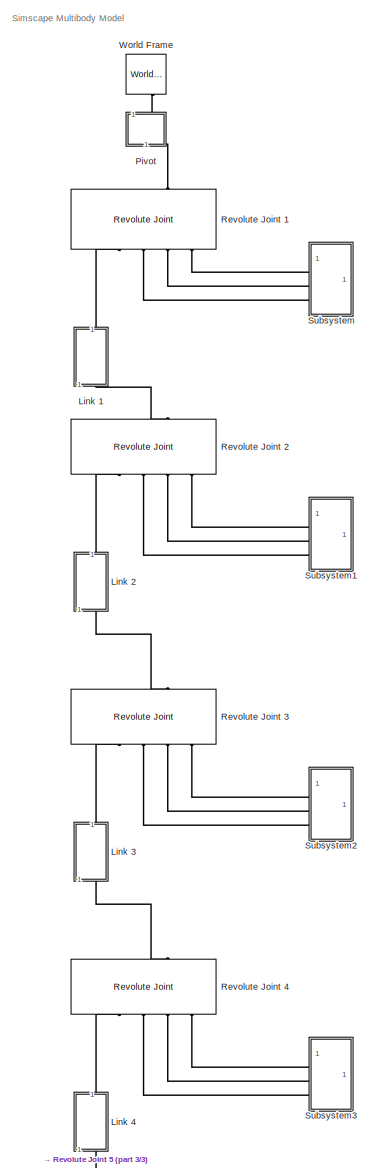
[diagram: root canvas - part 1/3, top right region]
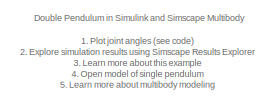
[diagram: root canvas - part 2/3, top left region]
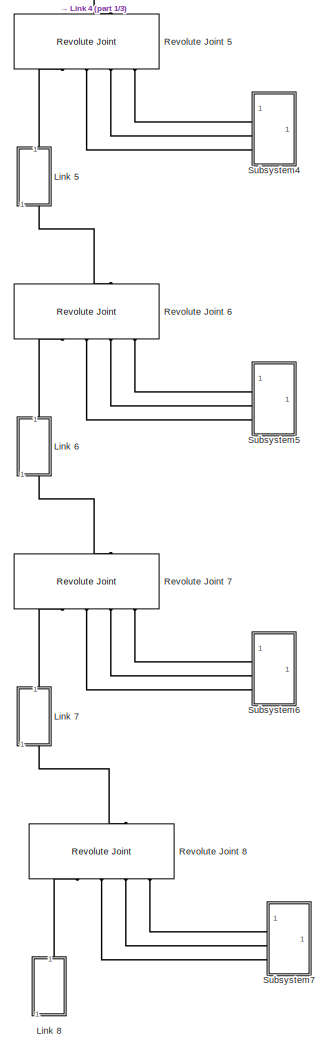
[diagram: root canvas - part 3/3, bottom right region]
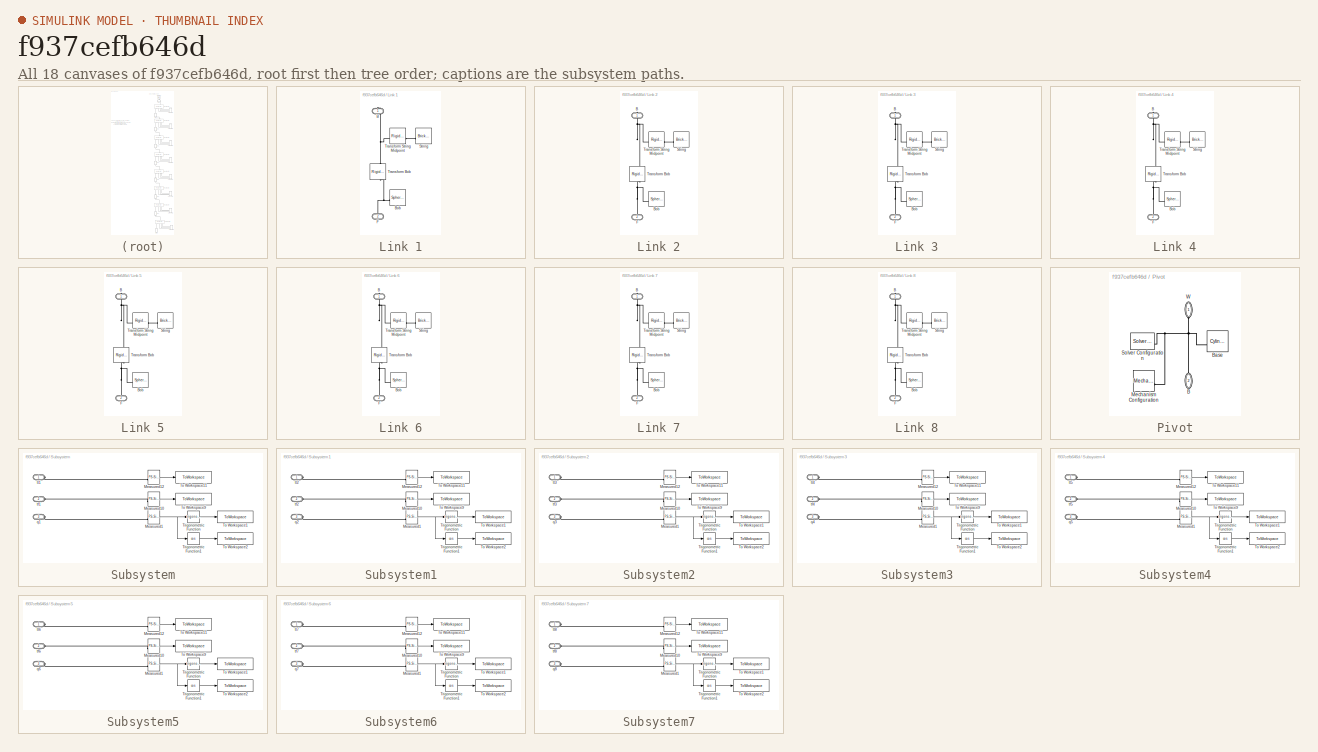
[diagram: thumbnail index - all 18 canvases of the model, root first then tree order]
MODEL slx_f937cefb646d
KIND model
CONFIG AbsTol = auto
CONFIG EnableMultiTasking = on
CONFIG FixedStep = auto
CONFIG MaxStep = 1e-2
CONFIG MinStep = auto
CONFIG RelTol = 1e-3
CONFIG SampleTimeConstraint = Unconstrained
CONFIG SolverName = ode15s
CONFIG StartTime = 0.0
CONFIG StopTime = runtime
WORKSPACE source: MATLAB code (in-file)
WORKSPACE m1 = 2
WORKSPACE m2 = 3
WORKSPACE L1 = 1.2
WORKSPACE L2 = 1.6
WORKSPACE g = 9.81
WORKSPACE theta1_0 = 22.5
WORKSPACE theta2_0 = -22.5
BLOCK [SubSystem] Link 1
  NameLocation = right
  Tag = CustomStyle
BLOCK [PMIOPort] Link 1/B
  NameLocation = right
  Side = Right
BLOCK [Reference] Link 1/Bob  REF=sm_lib/Body Elements/Spherical Solid
  SourceBlock = sm_lib/Body Elements/Spherical Solid
  SourceType = Spherical Solid
BLOCK [PMIOPort] Link 1/F
  NameLocation = right
  Port = 2
  Side = Left
BLOCK [Reference] Link 1/String  REF=sm_lib/Body Elements/Brick Solid
  SourceBlock = sm_lib/Body Elements/Brick Solid
  SourceType = Brick Solid
BLOCK [Reference] Link 1/Transform Bob   REF=sm_lib/Frames and
Transforms/Rigid
Transform
  NameLocation = right
  SourceBlock = sm_lib/Frames and\nTransforms/Rigid\nTransform
  SourceType = Rigid\nTransform
BLOCK [Reference] Link 1/Transform String Midpoint  REF=sm_lib/Frames and
Transforms/Rigid
Transform
  SourceBlock = sm_lib/Frames and\nTransforms/Rigid\nTransform
  SourceType = Rigid\nTransform
BLOCK [SubSystem] Link 2
  NameLocation = right
  Tag = CustomStyle
BLOCK [PMIOPort] Link 2/B
  NameLocation = right
  Side = Right
BLOCK [Reference] Link 2/Bob  REF=sm_lib/Body Elements/Spherical Solid
  SourceBlock = sm_lib/Body Elements/Spherical Solid
  SourceType = Spherical Solid
BLOCK [PMIOPort] Link 2/F
  NameLocation = right
  Port = 2
  Side = Left
BLOCK [Reference] Link 2/String  REF=sm_lib/Body Elements/Brick Solid
  SourceBlock = sm_lib/Body Elements/Brick Solid
  SourceType = Brick Solid
BLOCK [Reference] Link 2/Transform Bob   REF=sm_lib/Frames and
Transforms/Rigid
Transform
  NameLocation = right
  SourceBlock = sm_lib/Frames and\nTransforms/Rigid\nTransform
  SourceType = Rigid\nTransform
BLOCK [Reference] Link 2/Transform String Midpoint  REF=sm_lib/Frames and
Transforms/Rigid
Transform
  SourceBlock = sm_lib/Frames and\nTransforms/Rigid\nTransform
  SourceType = Rigid\nTransform
BLOCK [SubSystem] Link 3
  NameLocation = right
  Tag = CustomStyle
BLOCK [PMIOPort] Link 3/B
  NameLocation = right
  Side = Right
BLOCK [Reference] Link 3/Bob  REF=sm_lib/Body Elements/Spherical Solid
  SourceBlock = sm_lib/Body Elements/Spherical Solid
  SourceType = Spherical Solid
BLOCK [PMIOPort] Link 3/F
  NameLocation = right
  Port = 2
  Side = Left
BLOCK [Reference] Link 3/String  REF=sm_lib/Body Elements/Brick Solid
  SourceBlock = sm_lib/Body Elements/Brick Solid
  SourceType = Brick Solid
BLOCK [Reference] Link 3/Transform Bob   REF=sm_lib/Frames and
Transforms/Rigid
Transform
  NameLocation = right
  SourceBlock = sm_lib/Frames and\nTransforms/Rigid\nTransform
  SourceType = Rigid\nTransform
BLOCK [Reference] Link 3/Transform String Midpoint  REF=sm_lib/Frames and
Transforms/Rigid
Transform
  SourceBlock = sm_lib/Frames and\nTransforms/Rigid\nTransform
  SourceType = Rigid\nTransform
BLOCK [SubSystem] Link 4
  NameLocation = right
  Tag = CustomStyle
BLOCK [PMIOPort] Link 4/B
  NameLocation = right
  Side = Right
BLOCK [Reference] Link 4/Bob  REF=sm_lib/Body Elements/Spherical Solid
  SourceBlock = sm_lib/Body Elements/Spherical Solid
  SourceType = Spherical Solid
BLOCK [PMIOPort] Link 4/F
  NameLocation = right
  Port = 2
  Side = Left
BLOCK [Reference] Link 4/String  REF=sm_lib/Body Elements/Brick Solid
  SourceBlock = sm_lib/Body Elements/Brick Solid
  SourceType = Brick Solid
BLOCK [Reference] Link 4/Transform Bob   REF=sm_lib/Frames and
Transforms/Rigid
Transform
  NameLocation = right
  SourceBlock = sm_lib/Frames and\nTransforms/Rigid\nTransform
  SourceType = Rigid\nTransform
BLOCK [Reference] Link 4/Transform String Midpoint  REF=sm_lib/Frames and
Transforms/Rigid
Transform
  SourceBlock = sm_lib/Frames and\nTransforms/Rigid\nTransform
  SourceType = Rigid\nTransform
BLOCK [SubSystem] Link 5
  NameLocation = right
  Tag = CustomStyle
BLOCK [PMIOPort] Link 5/B
  NameLocation = right
  Side = Right
BLOCK [Reference] Link 5/Bob  REF=sm_lib/Body Elements/Spherical Solid
  SourceBlock = sm_lib/Body Elements/Spherical Solid
  SourceType = Spherical Solid
BLOCK [PMIOPort] Link 5/F
  NameLocation = right
  Port = 2
  Side = Left
BLOCK [Reference] Link 5/String  REF=sm_lib/Body Elements/Brick Solid
  SourceBlock = sm_lib/Body Elements/Brick Solid
  SourceType = Brick Solid
BLOCK [Reference] Link 5/Transform Bob   REF=sm_lib/Frames and
Transforms/Rigid
Transform
  NameLocation = right
  SourceBlock = sm_lib/Frames and\nTransforms/Rigid\nTransform
  SourceType = Rigid\nTransform
BLOCK [Reference] Link 5/Transform String Midpoint  REF=sm_lib/Frames and
Transforms/Rigid
Transform
  SourceBlock = sm_lib/Frames and\nTransforms/Rigid\nTransform
  SourceType = Rigid\nTransform
BLOCK [SubSystem] Link 6
  NameLocation = right
  Tag = CustomStyle
BLOCK [PMIOPort] Link 6/B
  NameLocation = right
  Side = Right
BLOCK [Reference] Link 6/Bob  REF=sm_lib/Body Elements/Spherical Solid
  SourceBlock = sm_lib/Body Elements/Spherical Solid
  SourceType = Spherical Solid
BLOCK [PMIOPort] Link 6/F
  NameLocation = right
  Port = 2
  Side = Left
BLOCK [Reference] Link 6/String  REF=sm_lib/Body Elements/Brick Solid
  SourceBlock = sm_lib/Body Elements/Brick Solid
  SourceType = Brick Solid
BLOCK [Reference] Link 6/Transform Bob   REF=sm_lib/Frames and
Transforms/Rigid
Transform
  NameLocation = right
  SourceBlock = sm_lib/Frames and\nTransforms/Rigid\nTransform
  SourceType = Rigid\nTransform
BLOCK [Reference] Link 6/Transform String Midpoint  REF=sm_lib/Frames and
Transforms/Rigid
Transform
  SourceBlock = sm_lib/Frames and\nTransforms/Rigid\nTransform
  SourceType = Rigid\nTransform
BLOCK [SubSystem] Link 7
  NameLocation = right
  Tag = CustomStyle
BLOCK [PMIOPort] Link 7/B
  NameLocation = right
  Side = Right
BLOCK [Reference] Link 7/Bob  REF=sm_lib/Body Elements/Spherical Solid
  SourceBlock = sm_lib/Body Elements/Spherical Solid
  SourceType = Spherical Solid
BLOCK [PMIOPort] Link 7/F
  NameLocation = right
  Port = 2
  Side = Left
BLOCK [Reference] Link 7/String  REF=sm_lib/Body Elements/Brick Solid
  SourceBlock = sm_lib/Body Elements/Brick Solid
  SourceType = Brick Solid
BLOCK [Reference] Link 7/Transform Bob   REF=sm_lib/Frames and
Transforms/Rigid
Transform
  NameLocation = right
  SourceBlock = sm_lib/Frames and\nTransforms/Rigid\nTransform
  SourceType = Rigid\nTransform
BLOCK [Reference] Link 7/Transform String Midpoint  REF=sm_lib/Frames and
Transforms/Rigid
Transform
  SourceBlock = sm_lib/Frames and\nTransforms/Rigid\nTransform
  SourceType = Rigid\nTransform
BLOCK [SubSystem] Link 8
  NameLocation = right
  Tag = CustomStyle
BLOCK [PMIOPort] Link 8/B
  NameLocation = right
  Side = Right
BLOCK [Reference] Link 8/Bob  REF=sm_lib/Body Elements/Spherical Solid
  SourceBlock = sm_lib/Body Elements/Spherical Solid
  SourceType = Spherical Solid
BLOCK [PMIOPort] Link 8/F
  NameLocation = right
  Port = 2
  Side = Left
BLOCK [Reference] Link 8/String  REF=sm_lib/Body Elements/Brick Solid
  SourceBlock = sm_lib/Body Elements/Brick Solid
  SourceType = Brick Solid
BLOCK [Reference] Link 8/Transform Bob   REF=sm_lib/Frames and
Transforms/Rigid
Transform
  NameLocation = right
  SourceBlock = sm_lib/Frames and\nTransforms/Rigid\nTransform
  SourceType = Rigid\nTransform
BLOCK [Reference] Link 8/Transform String Midpoint  REF=sm_lib/Frames and
Transforms/Rigid
Transform
  SourceBlock = sm_lib/Frames and\nTransforms/Rigid\nTransform
  SourceType = Rigid\nTransform
BLOCK [SubSystem] Pivot
  NameLocation = right
  Tag = CustomStyle
BLOCK [PMIOPort] Pivot/B
  NameLocation = right
  Port = 2
  Side = Right
BLOCK [Reference] Pivot/Base  REF=sm_lib/Body Elements/Cylindrical Solid
  SourceBlock = sm_lib/Body Elements/Cylindrical Solid
  SourceType = Cylindrical Solid
BLOCK [Reference] Pivot/Mechanism Configuration  REF=sm_lib/Utilities/Mechanism
Configuration
  SourceBlock = sm_lib/Utilities/Mechanism\nConfiguration
  SourceType = Mechanism\nConfiguration
BLOCK [Reference] Pivot/Solver Configuration  REF=nesl_utility/Solver
Configuration
  SourceBlock = nesl_utility/Solver\nConfiguration
  SourceType = Solver\nConfiguration
BLOCK [PMIOPort] Pivot/W
  NameLocation = right
  Side = Left
BLOCK [Reference] Revolute Joint 1  REF=sm_lib/Joints/Revolute Joint
  NameLocation = right
  SourceBlock = sm_lib/Joints/Revolute Joint
  SourceType = Revolute Joint
BLOCK [Reference] Revolute Joint 2  REF=sm_lib/Joints/Revolute Joint
  NameLocation = right
  SourceBlock = sm_lib/Joints/Revolute Joint
  SourceType = Revolute Joint
BLOCK [Reference] Revolute Joint 3  REF=sm_lib/Joints/Revolute Joint
  NameLocation = right
  SourceBlock = sm_lib/Joints/Revolute Joint
  SourceType = Revolute Joint
BLOCK [Reference] Revolute Joint 4  REF=sm_lib/Joints/Revolute Joint
  NameLocation = right
  SourceBlock = sm_lib/Joints/Revolute Joint
  SourceType = Revolute Joint
BLOCK [Reference] Revolute Joint 5  REF=sm_lib/Joints/Revolute Joint
  NameLocation = right
  SourceBlock = sm_lib/Joints/Revolute Joint
  SourceType = Revolute Joint
BLOCK [Reference] Revolute Joint 6  REF=sm_lib/Joints/Revolute Joint
  NameLocation = right
  SourceBlock = sm_lib/Joints/Revolute Joint
  SourceType = Revolute Joint
BLOCK [Reference] Revolute Joint 7  REF=sm_lib/Joints/Revolute Joint
  NameLocation = right
  SourceBlock = sm_lib/Joints/Revolute Joint
  SourceType = Revolute Joint
BLOCK [Reference] Revolute Joint 8  REF=sm_lib/Joints/Revolute Joint
  NameLocation = right
  SourceBlock = sm_lib/Joints/Revolute Joint
  SourceType = Revolute Joint
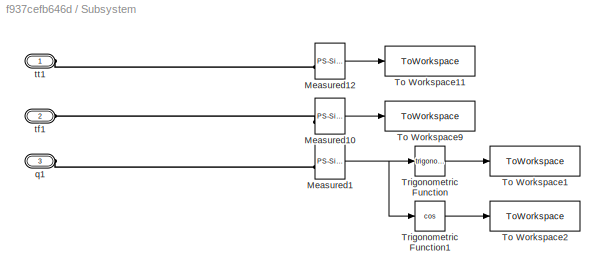
BLOCK [SubSystem] Subsystem
BLOCK [Reference] Subsystem/Measured1  REF=nesl_utility/PS-Simulink
Converter
  NameLocation = top
  SourceBlock = nesl_utility/PS-Simulink\nConverter
  SourceType = PS-Simulink\nConverter
BLOCK [Reference] Subsystem/Measured10  REF=nesl_utility/PS-Simulink
Converter
  NameLocation = top
  SourceBlock = nesl_utility/PS-Simulink\nConverter
  SourceType = PS-Simulink\nConverter
BLOCK [Reference] Subsystem/Measured12  REF=nesl_utility/PS-Simulink
Converter
  NameLocation = top
  SourceBlock = nesl_utility/PS-Simulink\nConverter
  SourceType = PS-Simulink\nConverter
BLOCK [ToWorkspace] Subsystem/To Workspace1
  FixptAsFi = on
  MaxDataPoints = inf
  SampleTime = sampletime
  VariableName = sin1
BLOCK [ToWorkspace] Subsystem/To Workspace11
  FixptAsFi = on
  MaxDataPoints = inf
  SampleTime = sampletime
  VariableName = tt1
BLOCK [ToWorkspace] Subsystem/To Workspace2
  FixptAsFi = on
  MaxDataPoints = inf
  SampleTime = sampletime
  VariableName = cos1
BLOCK [ToWorkspace] Subsystem/To Workspace9
  FixptAsFi = on
  MaxDataPoints = inf
  SampleTime = sampletime
  VariableName = tf1
BLOCK [Trigonometry] Subsystem/Trigonometric Function
BLOCK [Trigonometry] Subsystem/Trigonometric Function1
  Operator = cos
BLOCK [PMIOPort] Subsystem/q1
  Port = 3
  Side = Left
BLOCK [PMIOPort] Subsystem/tf1
  Port = 2
  Side = Left
BLOCK [PMIOPort] Subsystem/tt1
  Side = Left
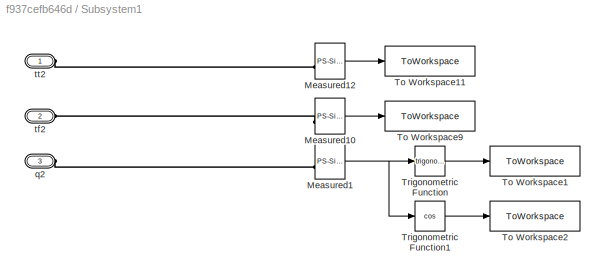
BLOCK [SubSystem] Subsystem1
BLOCK [Reference] Subsystem1/Measured1  REF=nesl_utility/PS-Simulink
Converter
  NameLocation = top
  SourceBlock = nesl_utility/PS-Simulink\nConverter
  SourceType = PS-Simulink\nConverter
BLOCK [Reference] Subsystem1/Measured10  REF=nesl_utility/PS-Simulink
Converter
  NameLocation = top
  SourceBlock = nesl_utility/PS-Simulink\nConverter
  SourceType = PS-Simulink\nConverter
BLOCK [Reference] Subsystem1/Measured12  REF=nesl_utility/PS-Simulink
Converter
  NameLocation = top
  SourceBlock = nesl_utility/PS-Simulink\nConverter
  SourceType = PS-Simulink\nConverter
BLOCK [ToWorkspace] Subsystem1/To Workspace1
  FixptAsFi = on
  MaxDataPoints = inf
  SampleTime = sampletime
  VariableName = sin2
BLOCK [ToWorkspace] Subsystem1/To Workspace11
  FixptAsFi = on
  MaxDataPoints = inf
  SampleTime = sampletime
  VariableName = tt2
BLOCK [ToWorkspace] Subsystem1/To Workspace2
  FixptAsFi = on
  MaxDataPoints = inf
  SampleTime = sampletime
  VariableName = cos2
BLOCK [ToWorkspace] Subsystem1/To Workspace9
  FixptAsFi = on
  MaxDataPoints = inf
  SampleTime = sampletime
  VariableName = tf2
BLOCK [Trigonometry] Subsystem1/Trigonometric Function
BLOCK [Trigonometry] Subsystem1/Trigonometric Function1
  Operator = cos
BLOCK [PMIOPort] Subsystem1/q2
  Port = 3
  Side = Left
BLOCK [PMIOPort] Subsystem1/tf2
  Port = 2
  Side = Left
BLOCK [PMIOPort] Subsystem1/tt2
  Side = Left
BLOCK [SubSystem] Subsystem2
BLOCK [Reference] Subsystem2/Measured1  REF=nesl_utility/PS-Simulink
Converter
  NameLocation = top
  SourceBlock = nesl_utility/PS-Simulink\nConverter
  SourceType = PS-Simulink\nConverter
BLOCK [Reference] Subsystem2/Measured10  REF=nesl_utility/PS-Simulink
Converter
  NameLocation = top
  SourceBlock = nesl_utility/PS-Simulink\nConverter
  SourceType = PS-Simulink\nConverter
BLOCK [Reference] Subsystem2/Measured12  REF=nesl_utility/PS-Simulink
Converter
  NameLocation = top
  SourceBlock = nesl_utility/PS-Simulink\nConverter
  SourceType = PS-Simulink\nConverter
BLOCK [ToWorkspace] Subsystem2/To Workspace1
  FixptAsFi = on
  MaxDataPoints = inf
  SampleTime = sampletime
  VariableName = sin3
BLOCK [ToWorkspace] Subsystem2/To Workspace11
  FixptAsFi = on
  MaxDataPoints = inf
  SampleTime = sampletime
  VariableName = tt3
BLOCK [ToWorkspace] Subsystem2/To Workspace2
  FixptAsFi = on
  MaxDataPoints = inf
  SampleTime = sampletime
  VariableName = cos3
BLOCK [ToWorkspace] Subsystem2/To Workspace9
  FixptAsFi = on
  MaxDataPoints = inf
  SampleTime = sampletime
  VariableName = tf3
BLOCK [Trigonometry] Subsystem2/Trigonometric Function
BLOCK [Trigonometry] Subsystem2/Trigonometric Function1
  Operator = cos
BLOCK [PMIOPort] Subsystem2/q3
  Port = 3
  Side = Left
BLOCK [PMIOPort] Subsystem2/tf3
  Port = 2
  Side = Left
BLOCK [PMIOPort] Subsystem2/tt3
  Side = Left
BLOCK [SubSystem] Subsystem3
BLOCK [Reference] Subsystem3/Measured1  REF=nesl_utility/PS-Simulink
Converter
  NameLocation = top
  SourceBlock = nesl_utility/PS-Simulink\nConverter
  SourceType = PS-Simulink\nConverter
BLOCK [Reference] Subsystem3/Measured10  REF=nesl_utility/PS-Simulink
Converter
  NameLocation = top
  SourceBlock = nesl_utility/PS-Simulink\nConverter
  SourceType = PS-Simulink\nConverter
BLOCK [Reference] Subsystem3/Measured12  REF=nesl_utility/PS-Simulink
Converter
  NameLocation = top
  SourceBlock = nesl_utility/PS-Simulink\nConverter
  SourceType = PS-Simulink\nConverter
BLOCK [ToWorkspace] Subsystem3/To Workspace1
  FixptAsFi = on
  MaxDataPoints = inf
  SampleTime = sampletime
  VariableName = sin4
BLOCK [ToWorkspace] Subsystem3/To Workspace11
  FixptAsFi = on
  MaxDataPoints = inf
  SampleTime = sampletime
  VariableName = tt4
BLOCK [ToWorkspace] Subsystem3/To Workspace2
  FixptAsFi = on
  MaxDataPoints = inf
  SampleTime = sampletime
  VariableName = cos4
BLOCK [ToWorkspace] Subsystem3/To Workspace9
  FixptAsFi = on
  MaxDataPoints = inf
  SampleTime = sampletime
  VariableName = tf4
BLOCK [Trigonometry] Subsystem3/Trigonometric Function
BLOCK [Trigonometry] Subsystem3/Trigonometric Function1
  Operator = cos
BLOCK [PMIOPort] Subsystem3/q4
  Port = 3
  Side = Left
BLOCK [PMIOPort] Subsystem3/tf4
  Port = 2
  Side = Left
BLOCK [PMIOPort] Subsystem3/tt4
  Side = Left
BLOCK [SubSystem] Subsystem4
BLOCK [Reference] Subsystem4/Measured1  REF=nesl_utility/PS-Simulink
Converter
  NameLocation = top
  SourceBlock = nesl_utility/PS-Simulink\nConverter
  SourceType = PS-Simulink\nConverter
BLOCK [Reference] Subsystem4/Measured10  REF=nesl_utility/PS-Simulink
Converter
  NameLocation = top
  SourceBlock = nesl_utility/PS-Simulink\nConverter
  SourceType = PS-Simulink\nConverter
BLOCK [Reference] Subsystem4/Measured12  REF=nesl_utility/PS-Simulink
Converter
  NameLocation = top
  SourceBlock = nesl_utility/PS-Simulink\nConverter
  SourceType = PS-Simulink\nConverter
BLOCK [ToWorkspace] Subsystem4/To Workspace1
  FixptAsFi = on
  MaxDataPoints = inf
  SampleTime = sampletime
  VariableName = sin5
BLOCK [ToWorkspace] Subsystem4/To Workspace11
  FixptAsFi = on
  MaxDataPoints = inf
  SampleTime = sampletime
  VariableName = tt5
BLOCK [ToWorkspace] Subsystem4/To Workspace2
  FixptAsFi = on
  MaxDataPoints = inf
  SampleTime = sampletime
  VariableName = cos5
BLOCK [ToWorkspace] Subsystem4/To Workspace9
  FixptAsFi = on
  MaxDataPoints = inf
  SampleTime = sampletime
  VariableName = tf5
BLOCK [Trigonometry] Subsystem4/Trigonometric Function
BLOCK [Trigonometry] Subsystem4/Trigonometric Function1
  Operator = cos
BLOCK [PMIOPort] Subsystem4/q5
  Port = 3
  Side = Left
BLOCK [PMIOPort] Subsystem4/tf5
  Port = 2
  Side = Left
BLOCK [PMIOPort] Subsystem4/tt5
  Side = Left
BLOCK [SubSystem] Subsystem5
BLOCK [Reference] Subsystem5/Measured1  REF=nesl_utility/PS-Simulink
Converter
  NameLocation = top
  SourceBlock = nesl_utility/PS-Simulink\nConverter
  SourceType = PS-Simulink\nConverter
BLOCK [Reference] Subsystem5/Measured10  REF=nesl_utility/PS-Simulink
Converter
  NameLocation = top
  SourceBlock = nesl_utility/PS-Simulink\nConverter
  SourceType = PS-Simulink\nConverter
BLOCK [Reference] Subsystem5/Measured12  REF=nesl_utility/PS-Simulink
Converter
  NameLocation = top
  SourceBlock = nesl_utility/PS-Simulink\nConverter
  SourceType = PS-Simulink\nConverter
BLOCK [ToWorkspace] Subsystem5/To Workspace1
  FixptAsFi = on
  MaxDataPoints = inf
  SampleTime = sampletime
  VariableName = sin6
BLOCK [ToWorkspace] Subsystem5/To Workspace11
  FixptAsFi = on
  MaxDataPoints = inf
  SampleTime = sampletime
  VariableName = tt6
BLOCK [ToWorkspace] Subsystem5/To Workspace2
  FixptAsFi = on
  MaxDataPoints = inf
  SampleTime = sampletime
  VariableName = cos6
BLOCK [ToWorkspace] Subsystem5/To Workspace9
  FixptAsFi = on
  MaxDataPoints = inf
  SampleTime = sampletime
  VariableName = tf6
BLOCK [Trigonometry] Subsystem5/Trigonometric Function
BLOCK [Trigonometry] Subsystem5/Trigonometric Function1
  Operator = cos
BLOCK [PMIOPort] Subsystem5/q6
  Port = 3
  Side = Left
BLOCK [PMIOPort] Subsystem5/tf6
  Port = 2
  Side = Left
BLOCK [PMIOPort] Subsystem5/tt6
  Side = Left
BLOCK [SubSystem] Subsystem6
BLOCK [Reference] Subsystem6/Measured1  REF=nesl_utility/PS-Simulink
Converter
  NameLocation = top
  SourceBlock = nesl_utility/PS-Simulink\nConverter
  SourceType = PS-Simulink\nConverter
BLOCK [Reference] Subsystem6/Measured10  REF=nesl_utility/PS-Simulink
Converter
  NameLocation = top
  SourceBlock = nesl_utility/PS-Simulink\nConverter
  SourceType = PS-Simulink\nConverter
BLOCK [Reference] Subsystem6/Measured12  REF=nesl_utility/PS-Simulink
Converter
  NameLocation = top
  SourceBlock = nesl_utility/PS-Simulink\nConverter
  SourceType = PS-Simulink\nConverter
BLOCK [ToWorkspace] Subsystem6/To Workspace1
  FixptAsFi = on
  MaxDataPoints = inf
  SampleTime = sampletime
  VariableName = sin7
BLOCK [ToWorkspace] Subsystem6/To Workspace11
  FixptAsFi = on
  MaxDataPoints = inf
  SampleTime = sampletime
  VariableName = tt7
BLOCK [ToWorkspace] Subsystem6/To Workspace2
  FixptAsFi = on
  MaxDataPoints = inf
  SampleTime = sampletime
  VariableName = cos7
BLOCK [ToWorkspace] Subsystem6/To Workspace9
  FixptAsFi = on
  MaxDataPoints = inf
  SampleTime = sampletime
  VariableName = tf7
BLOCK [Trigonometry] Subsystem6/Trigonometric Function
BLOCK [Trigonometry] Subsystem6/Trigonometric Function1
  Operator = cos
BLOCK [PMIOPort] Subsystem6/q7
  Port = 3
  Side = Left
BLOCK [PMIOPort] Subsystem6/tf7
  Port = 2
  Side = Left
BLOCK [PMIOPort] Subsystem6/tt7
  Side = Left
BLOCK [SubSystem] Subsystem7
BLOCK [Reference] Subsystem7/Measured1  REF=nesl_utility/PS-Simulink
Converter
  NameLocation = top
  SourceBlock = nesl_utility/PS-Simulink\nConverter
  SourceType = PS-Simulink\nConverter
BLOCK [Reference] Subsystem7/Measured10  REF=nesl_utility/PS-Simulink
Converter
  NameLocation = top
  SourceBlock = nesl_utility/PS-Simulink\nConverter
  SourceType = PS-Simulink\nConverter
BLOCK [Reference] Subsystem7/Measured12  REF=nesl_utility/PS-Simulink
Converter
  NameLocation = top
  SourceBlock = nesl_utility/PS-Simulink\nConverter
  SourceType = PS-Simulink\nConverter
BLOCK [ToWorkspace] Subsystem7/To Workspace1
  FixptAsFi = on
  MaxDataPoints = inf
  SampleTime = sampletime
  VariableName = sin8
BLOCK [ToWorkspace] Subsystem7/To Workspace11
  FixptAsFi = on
  MaxDataPoints = inf
  SampleTime = sampletime
  VariableName = tt8
BLOCK [ToWorkspace] Subsystem7/To Workspace2
  FixptAsFi = on
  MaxDataPoints = inf
  SampleTime = sampletime
  VariableName = cos8
BLOCK [ToWorkspace] Subsystem7/To Workspace9
  FixptAsFi = on
  MaxDataPoints = inf
  SampleTime = sampletime
  VariableName = tf8
BLOCK [Trigonometry] Subsystem7/Trigonometric Function
BLOCK [Trigonometry] Subsystem7/Trigonometric Function1
  Operator = cos
BLOCK [PMIOPort] Subsystem7/q8
  Port = 3
  Side = Left
BLOCK [PMIOPort] Subsystem7/tf8
  Port = 2
  Side = Left
BLOCK [PMIOPort] Subsystem7/tt8
  Side = Left
BLOCK [Reference] World Frame  REF=sm_lib/Frames and
Transforms/World Frame
  NameLocation = right
  SourceBlock = sm_lib/Frames and\nTransforms/World Frame
  SourceType = World Frame
ANNOTATION (root): 1. Plot joint angles ( see code ) 2. Explore simulation results using Simscape Results Explorer 3. Learn more about this example 4. Open model of single pendulum 5. Learn more about multibody modeling
ANNOTATION (root): Simscape Multibody Model
ANNOTATION (root): Double Pendulum in Simulink and Simscape Multibody
LINE Subsystem/Measured10:1 -> Subsystem/To Workspace9:1
LINE Subsystem/Measured12:1 -> Subsystem/To Workspace11:1
NET Subsystem/Measured1:1 -> Subsystem/Trigonometric Function1:1, Subsystem/Trigonometric Function:1
LINE Subsystem/Trigonometric Function1:1 -> Subsystem/To Workspace2:1
LINE Subsystem/Trigonometric Function:1 -> Subsystem/To Workspace1:1
LINE Subsystem1/Measured10:1 -> Subsystem1/To Workspace9:1
LINE Subsystem1/Measured12:1 -> Subsystem1/To Workspace11:1
NET Subsystem1/Measured1:1 -> Subsystem1/Trigonometric Function1:1, Subsystem1/Trigonometric Function:1
LINE Subsystem1/Trigonometric Function1:1 -> Subsystem1/To Workspace2:1
LINE Subsystem1/Trigonometric Function:1 -> Subsystem1/To Workspace1:1
LINE Subsystem2/Measured10:1 -> Subsystem2/To Workspace9:1
LINE Subsystem2/Measured12:1 -> Subsystem2/To Workspace11:1
NET Subsystem2/Measured1:1 -> Subsystem2/Trigonometric Function1:1, Subsystem2/Trigonometric Function:1
LINE Subsystem2/Trigonometric Function1:1 -> Subsystem2/To Workspace2:1
LINE Subsystem2/Trigonometric Function:1 -> Subsystem2/To Workspace1:1
LINE Subsystem3/Measured10:1 -> Subsystem3/To Workspace9:1
LINE Subsystem3/Measured12:1 -> Subsystem3/To Workspace11:1
NET Subsystem3/Measured1:1 -> Subsystem3/Trigonometric Function1:1, Subsystem3/Trigonometric Function:1
LINE Subsystem3/Trigonometric Function1:1 -> Subsystem3/To Workspace2:1
LINE Subsystem3/Trigonometric Function:1 -> Subsystem3/To Workspace1:1
LINE Subsystem4/Measured10:1 -> Subsystem4/To Workspace9:1
LINE Subsystem4/Measured12:1 -> Subsystem4/To Workspace11:1
NET Subsystem4/Measured1:1 -> Subsystem4/Trigonometric Function1:1, Subsystem4/Trigonometric Function:1
LINE Subsystem4/Trigonometric Function1:1 -> Subsystem4/To Workspace2:1
LINE Subsystem4/Trigonometric Function:1 -> Subsystem4/To Workspace1:1
LINE Subsystem5/Measured10:1 -> Subsystem5/To Workspace9:1
LINE Subsystem5/Measured12:1 -> Subsystem5/To Workspace11:1
NET Subsystem5/Measured1:1 -> Subsystem5/Trigonometric Function1:1, Subsystem5/Trigonometric Function:1
LINE Subsystem5/Trigonometric Function1:1 -> Subsystem5/To Workspace2:1
LINE Subsystem5/Trigonometric Function:1 -> Subsystem5/To Workspace1:1
LINE Subsystem6/Measured10:1 -> Subsystem6/To Workspace9:1
LINE Subsystem6/Measured12:1 -> Subsystem6/To Workspace11:1
NET Subsystem6/Measured1:1 -> Subsystem6/Trigonometric Function1:1, Subsystem6/Trigonometric Function:1
LINE Subsystem6/Trigonometric Function1:1 -> Subsystem6/To Workspace2:1
LINE Subsystem6/Trigonometric Function:1 -> Subsystem6/To Workspace1:1
LINE Subsystem7/Measured10:1 -> Subsystem7/To Workspace9:1
LINE Subsystem7/Measured12:1 -> Subsystem7/To Workspace11:1
NET Subsystem7/Measured1:1 -> Subsystem7/Trigonometric Function1:1, Subsystem7/Trigonometric Function:1
LINE Subsystem7/Trigonometric Function1:1 -> Subsystem7/To Workspace2:1
LINE Subsystem7/Trigonometric Function:1 -> Subsystem7/To Workspace1:1
PNET net1: Link 1/B:RConn1 -- Link 1/Transform Bob :LConn1 -- Link 1/Transform String Midpoint:LConn1
PNET net2: Link 1/Bob:RConn1 -- Link 1/F:RConn1 -- Link 1/Transform Bob :RConn1
PLINE Link 1/String:RConn1 -- Link 1/Transform String Midpoint:RConn1
PLINE Link 1:LConn1 -- Revolute Joint 2:LConn1
PLINE Link 1:RConn1 -- Revolute Joint 1:RConn1
PNET net3: Link 2/B:RConn1 -- Link 2/Transform Bob :LConn1 -- Link 2/Transform String Midpoint:LConn1
PNET net4: Link 2/Bob:RConn1 -- Link 2/F:RConn1 -- Link 2/Transform Bob :RConn1
PLINE Link 2/String:RConn1 -- Link 2/Transform String Midpoint:RConn1
PLINE Link 2:LConn1 -- Revolute Joint 3:LConn1
PLINE Link 2:RConn1 -- Revolute Joint 2:RConn1
PNET net5: Link 3/B:RConn1 -- Link 3/Transform Bob :LConn1 -- Link 3/Transform String Midpoint:LConn1
PNET net6: Link 3/Bob:RConn1 -- Link 3/F:RConn1 -- Link 3/Transform Bob :RConn1
PLINE Link 3/String:RConn1 -- Link 3/Transform String Midpoint:RConn1
PLINE Link 3:LConn1 -- Revolute Joint 4:LConn1
PLINE Link 3:RConn1 -- Revolute Joint 3:RConn1
PNET net7: Link 4/B:RConn1 -- Link 4/Transform Bob :LConn1 -- Link 4/Transform String Midpoint:LConn1
PNET net8: Link 4/Bob:RConn1 -- Link 4/F:RConn1 -- Link 4/Transform Bob :RConn1
PLINE Link 4/String:RConn1 -- Link 4/Transform String Midpoint:RConn1
PLINE Link 4:LConn1 -- Revolute Joint 5:LConn1
PLINE Link 4:RConn1 -- Revolute Joint 4:RConn1
PNET net9: Link 5/B:RConn1 -- Link 5/Transform Bob :LConn1 -- Link 5/Transform String Midpoint:LConn1
PNET net10: Link 5/Bob:RConn1 -- Link 5/F:RConn1 -- Link 5/Transform Bob :RConn1
PLINE Link 5/String:RConn1 -- Link 5/Transform String Midpoint:RConn1
PLINE Link 5:LConn1 -- Revolute Joint 6:LConn1
PLINE Link 5:RConn1 -- Revolute Joint 5:RConn1
PNET net11: Link 6/B:RConn1 -- Link 6/Transform Bob :LConn1 -- Link 6/Transform String Midpoint:LConn1
PNET net12: Link 6/Bob:RConn1 -- Link 6/F:RConn1 -- Link 6/Transform Bob :RConn1
PLINE Link 6/String:RConn1 -- Link 6/Transform String Midpoint:RConn1
PLINE Link 6:LConn1 -- Revolute Joint 7:LConn1
PLINE Link 6:RConn1 -- Revolute Joint 6:RConn1
PNET net13: Link 7/B:RConn1 -- Link 7/Transform Bob :LConn1 -- Link 7/Transform String Midpoint:LConn1
PNET net14: Link 7/Bob:RConn1 -- Link 7/F:RConn1 -- Link 7/Transform Bob :RConn1
PLINE Link 7/String:RConn1 -- Link 7/Transform String Midpoint:RConn1
PLINE Link 7:LConn1 -- Revolute Joint 8:LConn1
PLINE Link 7:RConn1 -- Revolute Joint 7:RConn1
PNET net15: Link 8/B:RConn1 -- Link 8/Transform Bob :LConn1 -- Link 8/Transform String Midpoint:LConn1
PNET net16: Link 8/Bob:RConn1 -- Link 8/F:RConn1 -- Link 8/Transform Bob :RConn1
PLINE Link 8/String:RConn1 -- Link 8/Transform String Midpoint:RConn1
PLINE Link 8:RConn1 -- Revolute Joint 8:RConn1
PNET net17: Pivot/B:RConn1 -- Pivot/Base:RConn1 -- Pivot/Mechanism Configuration:RConn1 -- Pivot/Solver Configuration:RConn1 -- Pivot/W:RConn1
PLINE Pivot:LConn1 -- World Frame:RConn1
PLINE Pivot:RConn1 -- Revolute Joint 1:LConn1
PLINE Revolute Joint 1:RConn2 -- Subsystem:LConn3
PLINE Revolute Joint 1:RConn3 -- Subsystem:LConn2
PLINE Revolute Joint 1:RConn4 -- Subsystem:LConn1
PLINE Revolute Joint 2:RConn2 -- Subsystem1:LConn3
PLINE Revolute Joint 2:RConn3 -- Subsystem1:LConn2
PLINE Revolute Joint 2:RConn4 -- Subsystem1:LConn1
PLINE Revolute Joint 3:RConn2 -- Subsystem2:LConn3
PLINE Revolute Joint 3:RConn3 -- Subsystem2:LConn2
PLINE Revolute Joint 3:RConn4 -- Subsystem2:LConn1
PLINE Revolute Joint 4:RConn2 -- Subsystem3:LConn3
PLINE Revolute Joint 4:RConn3 -- Subsystem3:LConn2
PLINE Revolute Joint 4:RConn4 -- Subsystem3:LConn1
PLINE Revolute Joint 5:RConn2 -- Subsystem4:LConn3
PLINE Revolute Joint 5:RConn3 -- Subsystem4:LConn2
PLINE Revolute Joint 5:RConn4 -- Subsystem4:LConn1
PLINE Revolute Joint 6:RConn2 -- Subsystem5:LConn3
PLINE Revolute Joint 6:RConn3 -- Subsystem5:LConn2
PLINE Revolute Joint 6:RConn4 -- Subsystem5:LConn1
PLINE Revolute Joint 7:RConn2 -- Subsystem6:LConn3
PLINE Revolute Joint 7:RConn3 -- Subsystem6:LConn2
PLINE Revolute Joint 7:RConn4 -- Subsystem6:LConn1
PLINE Revolute Joint 8:RConn2 -- Subsystem7:LConn3
PLINE Revolute Joint 8:RConn3 -- Subsystem7:LConn2
PLINE Revolute Joint 8:RConn4 -- Subsystem7:LConn1
PLINE Subsystem/Measured10:LConn1 -- Subsystem/tf1:RConn1
PLINE Subsystem/Measured12:LConn1 -- Subsystem/tt1:RConn1
PLINE Subsystem/Measured1:LConn1 -- Subsystem/q1:RConn1
PLINE Subsystem1/Measured10:LConn1 -- Subsystem1/tf2:RConn1
PLINE Subsystem1/Measured12:LConn1 -- Subsystem1/tt2:RConn1
PLINE Subsystem1/Measured1:LConn1 -- Subsystem1/q2:RConn1
PLINE Subsystem2/Measured10:LConn1 -- Subsystem2/tf3:RConn1
PLINE Subsystem2/Measured12:LConn1 -- Subsystem2/tt3:RConn1
PLINE Subsystem2/Measured1:LConn1 -- Subsystem2/q3:RConn1
PLINE Subsystem3/Measured10:LConn1 -- Subsystem3/tf4:RConn1
PLINE Subsystem3/Measured12:LConn1 -- Subsystem3/tt4:RConn1
PLINE Subsystem3/Measured1:LConn1 -- Subsystem3/q4:RConn1
PLINE Subsystem4/Measured10:LConn1 -- Subsystem4/tf5:RConn1
PLINE Subsystem4/Measured12:LConn1 -- Subsystem4/tt5:RConn1
PLINE Subsystem4/Measured1:LConn1 -- Subsystem4/q5:RConn1
PLINE Subsystem5/Measured10:LConn1 -- Subsystem5/tf6:RConn1
PLINE Subsystem5/Measured12:LConn1 -- Subsystem5/tt6:RConn1
PLINE Subsystem5/Measured1:LConn1 -- Subsystem5/q6:RConn1
PLINE Subsystem6/Measured10:LConn1 -- Subsystem6/tf7:RConn1
PLINE Subsystem6/Measured12:LConn1 -- Subsystem6/tt7:RConn1
PLINE Subsystem6/Measured1:LConn1 -- Subsystem6/q7:RConn1
PLINE Subsystem7/Measured10:LConn1 -- Subsystem7/tf8:RConn1
PLINE Subsystem7/Measured12:LConn1 -- Subsystem7/tt8:RConn1
PLINE Subsystem7/Measured1:LConn1 -- Subsystem7/q8:RConn1
note: NET lines group one-source signal fan-out (src -> all destinations, sorted); 1:1 wires keep LINE; PNET lines group multi-terminal physical nets as a canonical sorted terminal list (undirected conserving connections); 2-terminal nets keep the pairwise PLINE form
